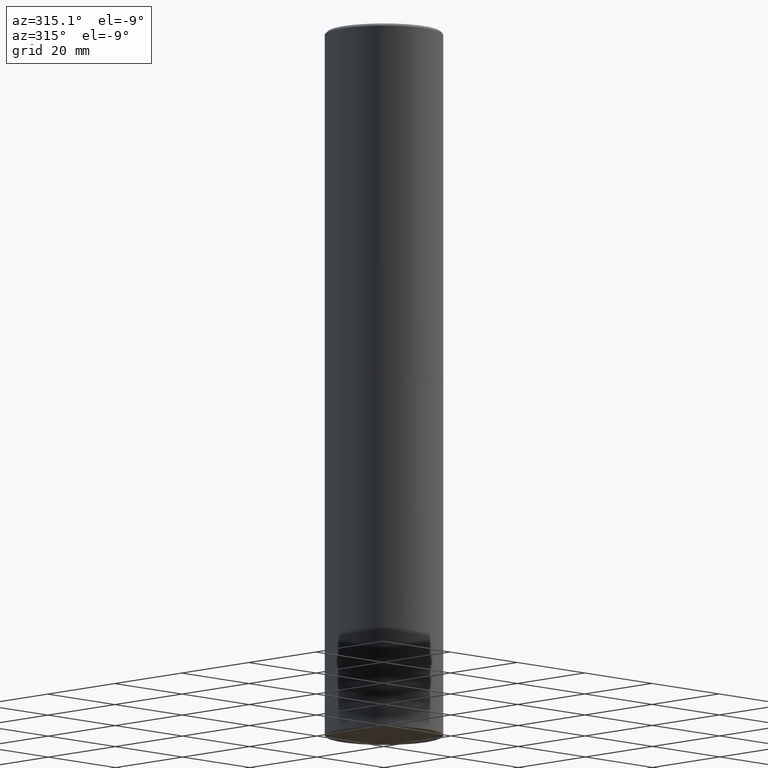
[diagram: clean part render]
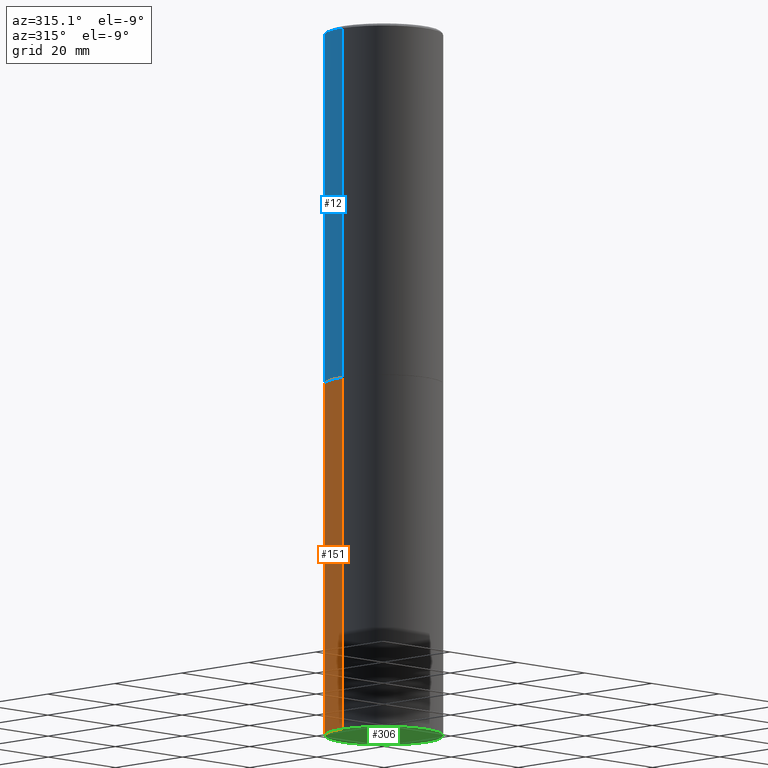
[diagram: same view with three faces highlighted in distinct colors, each labeled with its STEP entity id]
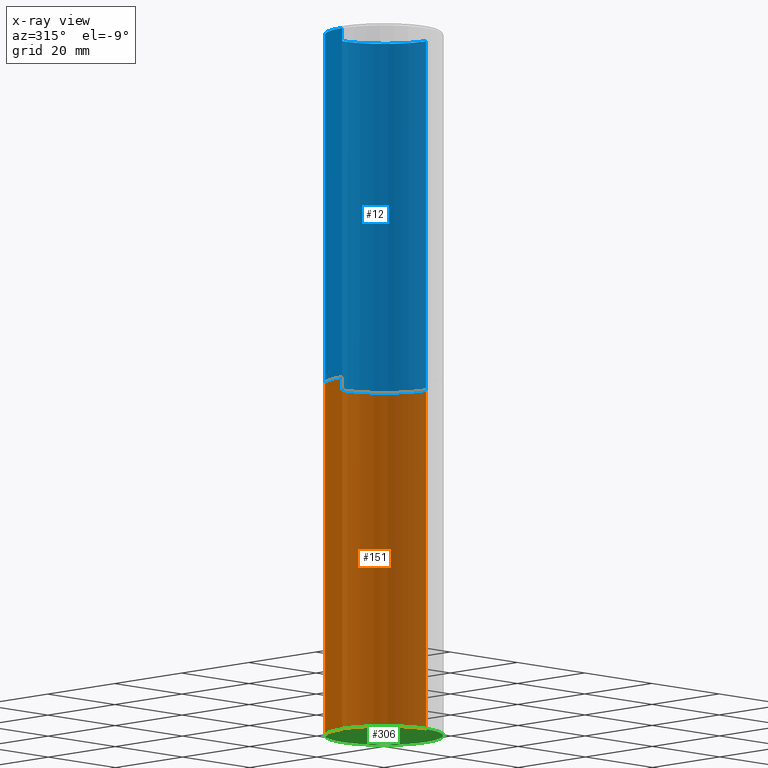
[diagram: x-ray of the same camera — body ghosted, the three highlighted faces saturated]
A machine part, auxiliary view with three faces highlighted in distinct colors.
The next image is the same camera in x-ray (body ghosted, the three faces saturated) — at least one of them is partly hidden behind the body in this view.
Their STEP definitions:

[orange] entity #151 — the highlighted cylindrical surface (partial cylindrical patch) has radius 12.5006 mm, axis along (-0, 0, 1).
#1 = AXIS2_PLACEMENT_3D ( 'NONE', #193, #281, #167 ) ;
#6 = VERTEX_POINT ( 'NONE', #236 ) ;
#10 = EDGE_LOOP ( 'NONE', ( #294, #41, #114, #116 ) ) ;
#13 = CIRCLE ( 'NONE', #1, 0.4921499999999999764 ) ;
#20 = DIRECTION ( 'NONE',  ( 1.000000000000000000, -6.982962677686265922E-15, 4.876176775795935793E-29 ) ) ;
#24 = EDGE_CURVE ( 'NONE', #58, #321, #112, .T. ) ;
#41 = ORIENTED_EDGE ( 'NONE', *, *, #345, .T. ) ;
#50 = DIRECTION ( 'NONE',  ( -2.445468806185136877E-29, 3.491481338843145188E-15, 1.000000000000000000 ) ) ;
#53 = CYLINDRICAL_SURFACE ( 'NONE', #288, 0.4921499999999999764 ) ;
#58 = VERTEX_POINT ( 'NONE', #83 ) ;
#69 = EDGE_CURVE ( 'NONE', #58, #6, #239, .T. ) ;
#80 = LINE ( 'NONE', #298, #138 ) ;
#83 = CARTESIAN_POINT ( 'NONE',  ( 0.4921499999999999764, -2.405560812836148932E-14, -5.905499999999999972 ) ) ;
#99 = VECTOR ( 'NONE', #125, 39.37007874015748143 ) ;
#112 = CIRCLE ( 'NONE', #328, 0.4921499999999999764 ) ;
#114 = ORIENTED_EDGE ( 'NONE', *, *, #256, .F. ) ;
#116 = ORIENTED_EDGE ( 'NONE', *, *, #69, .F. ) ;
#124 = DIRECTION ( 'NONE',  ( -2.445468806185136597E-29, 3.491481338843145583E-15, 1.000000000000000000 ) ) ;
#125 = DIRECTION ( 'NONE',  ( -2.445468806185136877E-29, 3.491481338843145188E-15, 1.000000000000000000 ) ) ;
#138 = VECTOR ( 'NONE', #50, 39.37007874015748143 ) ;
#151 = ADVANCED_FACE ( 'NONE', ( #301 ), #53, .T. ) ;
#156 = CARTESIAN_POINT ( 'NONE',  ( -0.4921499999999999764, -1.196718392382684217E-14, -2.952700000000000102 ) ) ;
#160 = DIRECTION ( 'NONE',  ( -2.445468806185136597E-29, 3.491481338843145583E-15, 1.000000000000000000 ) ) ;
#163 = CARTESIAN_POINT ( 'NONE',  ( 0.000000000000000000, 0.000000000000000000, 0.000000000000000000 ) ) ;
#167 = DIRECTION ( 'NONE',  ( 1.000000000000000000, -6.982962677686265922E-15, 0.000000000000000000 ) ) ;
#193 = CARTESIAN_POINT ( 'NONE',  ( 7.220735744022852519E-29, -1.030929694920215502E-14, -2.952700000000000102 ) ) ;
#202 = CARTESIAN_POINT ( 'NONE',  ( -0.4921499999999999764, -1.196718392382684217E-14, -5.905499999999999972 ) ) ;
#208 = DIRECTION ( 'NONE',  ( 1.000000000000000000, -6.982962677686265922E-15, 0.000000000000000000 ) ) ;
#236 = CARTESIAN_POINT ( 'NONE',  ( 0.4921499999999999764, -1.374596203102545079E-14, -2.952700000000000102 ) ) ;
#239 = LINE ( 'NONE', #359, #99 ) ;
#256 = EDGE_CURVE ( 'NONE', #6, #342, #13, .T. ) ;
#274 = CARTESIAN_POINT ( 'NONE',  ( 1.444171603492632270E-28, -2.061894304653819197E-14, -5.905499999999999972 ) ) ;
#281 = DIRECTION ( 'NONE',  ( -2.445468806185136597E-29, 3.491481338843145583E-15, 1.000000000000000000 ) ) ;
#288 = AXIS2_PLACEMENT_3D ( 'NONE', #163, #160, #20 ) ;
#294 = ORIENTED_EDGE ( 'NONE', *, *, #24, .T. ) ;
#298 = CARTESIAN_POINT ( 'NONE',  ( -0.4921499999999999764, 3.496936074043332897E-15, -2.420853904668951509E-29 ) ) ;
#301 = FACE_OUTER_BOUND ( 'NONE', #10, .T. ) ;
#321 = VERTEX_POINT ( 'NONE', #202 ) ;
#328 = AXIS2_PLACEMENT_3D ( 'NONE', #274, #124, #208 ) ;
#342 = VERTEX_POINT ( 'NONE', #156 ) ;
#345 = EDGE_CURVE ( 'NONE', #321, #342, #80, .T. ) ;
#359 = CARTESIAN_POINT ( 'NONE',  ( 0.4921499999999999764, -3.436665081823295777E-15, 2.399810400207969603E-29 ) ) ;

[blue] entity #12 — the highlighted cylindrical surface (partial cylindrical patch) has radius 12.5006 mm, axis along (-0, 0, 1).
#7 = VECTOR ( 'NONE', #366, 39.37007874015748143 ) ;
#12 = ADVANCED_FACE ( 'NONE', ( #78 ), #76, .T. ) ;
#31 = EDGE_CURVE ( 'NONE', #203, #90, #162, .T. ) ;
#38 = VERTEX_POINT ( 'NONE', #266 ) ;
#49 = DIRECTION ( 'NONE',  ( -2.445468806185136877E-29, 3.491481338843145188E-15, 1.000000000000000000 ) ) ;
#55 = CARTESIAN_POINT ( 'NONE',  ( 4.890937612370296805E-31, -6.982962677686323656E-17, -0.02000000000000009409 ) ) ;
#60 = ORIENTED_EDGE ( 'NONE', *, *, #65, .T. ) ;
#65 = EDGE_CURVE ( 'NONE', #90, #140, #128, .T. ) ;
#76 = CYLINDRICAL_SURFACE ( 'NONE', #165, 0.4921499999999998098 ) ;
#78 = FACE_OUTER_BOUND ( 'NONE', #365, .T. ) ;
#90 = VERTEX_POINT ( 'NONE', #187 ) ;
#95 = EDGE_CURVE ( 'NONE', #203, #38, #106, .T. ) ;
#106 = LINE ( 'NONE', #216, #240 ) ;
#108 = DIRECTION ( 'NONE',  ( -2.445468806185136597E-29, 3.491481338843145583E-15, 1.000000000000000000 ) ) ;
#127 = CARTESIAN_POINT ( 'NONE',  ( -0.4921499999999998098, 3.496936074043331714E-15, -2.420853904668950949E-29 ) ) ;
#128 = LINE ( 'NONE', #127, #7 ) ;
#132 = CARTESIAN_POINT ( 'NONE',  ( 0.4921499999999999764, -1.374247054968660936E-14, -2.951700000000000212 ) ) ;
#133 = CIRCLE ( 'NONE', #220, 0.4921499999999996988 ) ;
#140 = VERTEX_POINT ( 'NONE', #295 ) ;
#162 = CIRCLE ( 'NONE', #258, 0.4921499999999999764 ) ;
#165 = AXIS2_PLACEMENT_3D ( 'NONE', #331, #237, #364 ) ;
#187 = CARTESIAN_POINT ( 'NONE',  ( -0.4921499999999999764, -1.690881473276754954E-15, -2.951700000000000212 ) ) ;
#189 = DIRECTION ( 'NONE',  ( 1.000000000000000000, -6.982962677686265922E-15, 0.000000000000000000 ) ) ;
#194 = ORIENTED_EDGE ( 'NONE', *, *, #211, .F. ) ;
#203 = VERTEX_POINT ( 'NONE', #132 ) ;
#211 = EDGE_CURVE ( 'NONE', #38, #140, #133, .T. ) ;
#216 = CARTESIAN_POINT ( 'NONE',  ( 0.4921499999999998098, -3.436665081823294593E-15, 2.399810400207968762E-29 ) ) ;
#220 = AXIS2_PLACEMENT_3D ( 'NONE', #55, #305, #336 ) ;
#237 = DIRECTION ( 'NONE',  ( -2.445468806185136597E-29, 3.491481338843145583E-15, 1.000000000000000000 ) ) ;
#240 = VECTOR ( 'NONE', #49, 39.37007874015748143 ) ;
#258 = AXIS2_PLACEMENT_3D ( 'NONE', #271, #108, #189 ) ;
#266 = CARTESIAN_POINT ( 'NONE',  ( 0.4921499999999996988, -3.446223716380120377E-15, -0.02000000000000009409 ) ) ;
#271 = CARTESIAN_POINT ( 'NONE',  ( 7.218290275216666916E-29, -1.030580546786331359E-14, -2.951700000000000212 ) ) ;
#295 = CARTESIAN_POINT ( 'NONE',  ( -0.4921499999999996988, 3.366835455046430506E-15, -0.02000000000000009409 ) ) ;
#305 = DIRECTION ( 'NONE',  ( -2.445468806185136597E-29, 3.491481338843145583E-15, 1.000000000000000000 ) ) ;
#312 = ORIENTED_EDGE ( 'NONE', *, *, #31, .T. ) ;
#319 = ORIENTED_EDGE ( 'NONE', *, *, #95, .F. ) ;
#331 = CARTESIAN_POINT ( 'NONE',  ( 0.000000000000000000, 0.000000000000000000, 0.000000000000000000 ) ) ;
#336 = DIRECTION ( 'NONE',  ( 1.000000000000000000, -6.982962677686265922E-15, 0.000000000000000000 ) ) ;
#364 = DIRECTION ( 'NONE',  ( 1.000000000000000000, -6.982962677686265922E-15, 4.876176775795935793E-29 ) ) ;
#365 = EDGE_LOOP ( 'NONE', ( #312, #60, #194, #319 ) ) ;
#366 = DIRECTION ( 'NONE',  ( -2.445468806185136877E-29, 3.491481338843145188E-15, 1.000000000000000000 ) ) ;

[green] entity #306 — the highlighted planar face has unit normal (0, -0, -1).
#24 = EDGE_CURVE ( 'NONE', #58, #321, #112, .T. ) ;
#40 = CARTESIAN_POINT ( 'NONE',  ( 3.436665081823440533E-15, 0.4921499999999793262, -5.905500000000001748 ) ) ;
#54 = CIRCLE ( 'NONE', #302, 0.4921499999999999764 ) ;
#58 = VERTEX_POINT ( 'NONE', #83 ) ;
#83 = CARTESIAN_POINT ( 'NONE',  ( 0.4921499999999999764, -2.405560812836148932E-14, -5.905499999999999972 ) ) ;
#100 = ORIENTED_EDGE ( 'NONE', *, *, #24, .F. ) ;
#112 = CIRCLE ( 'NONE', #328, 0.4921499999999999764 ) ;
#124 = DIRECTION ( 'NONE',  ( -2.445468806185136597E-29, 3.491481338843145583E-15, 1.000000000000000000 ) ) ;
#145 = DIRECTION ( 'NONE',  ( -1.000000000000000000, 6.982962677686265922E-15, -4.876176775795935793E-29 ) ) ;
#150 = PLANE ( 'NONE',  #196 ) ;
#196 = AXIS2_PLACEMENT_3D ( 'NONE', #40, #355, #145 ) ;
#202 = CARTESIAN_POINT ( 'NONE',  ( -0.4921499999999999764, -1.196718392382684217E-14, -5.905499999999999972 ) ) ;
#208 = DIRECTION ( 'NONE',  ( 1.000000000000000000, -6.982962677686265922E-15, 0.000000000000000000 ) ) ;
#219 = ORIENTED_EDGE ( 'NONE', *, *, #322, .F. ) ;
#263 = DIRECTION ( 'NONE',  ( 1.000000000000000000, -6.982962677686265922E-15, 0.000000000000000000 ) ) ;
#274 = CARTESIAN_POINT ( 'NONE',  ( 1.444171603492632270E-28, -2.061894304653819197E-14, -5.905499999999999972 ) ) ;
#290 = CARTESIAN_POINT ( 'NONE',  ( 1.444171603492632270E-28, -2.061894304653819197E-14, -5.905499999999999972 ) ) ;
#302 = AXIS2_PLACEMENT_3D ( 'NONE', #290, #317, #263 ) ;
#306 = ADVANCED_FACE ( 'NONE', ( #314 ), #150, .T. ) ;
#314 = FACE_OUTER_BOUND ( 'NONE', #344, .T. ) ;
#317 = DIRECTION ( 'NONE',  ( -2.445468806185136597E-29, 3.491481338843145583E-15, 1.000000000000000000 ) ) ;
#321 = VERTEX_POINT ( 'NONE', #202 ) ;
#322 = EDGE_CURVE ( 'NONE', #321, #58, #54, .T. ) ;
#328 = AXIS2_PLACEMENT_3D ( 'NONE', #274, #124, #208 ) ;
#344 = EDGE_LOOP ( 'NONE', ( #100, #219 ) ) ;
#355 = DIRECTION ( 'NONE',  ( 2.438088387897960049E-29, -3.491481338843145188E-15, -1.000000000000000000 ) ) ;